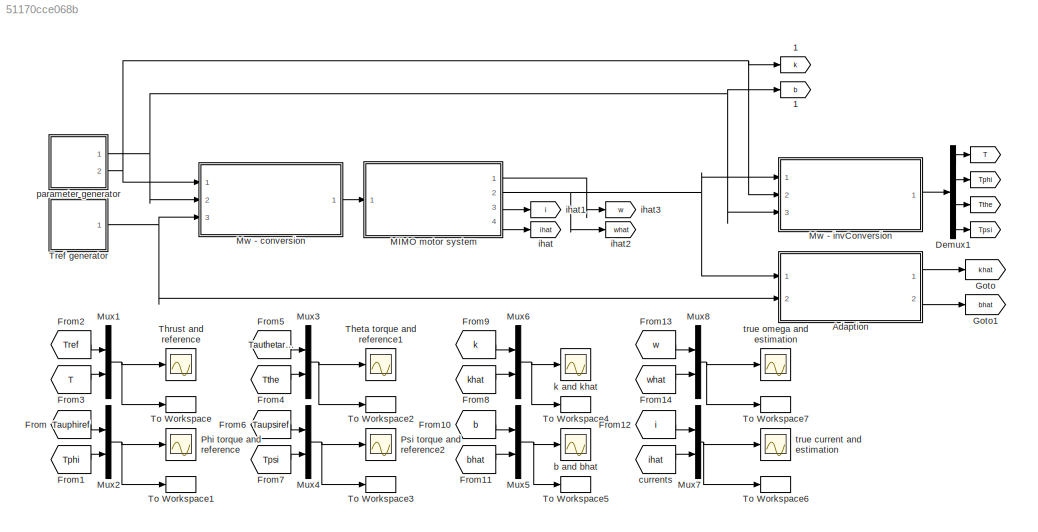
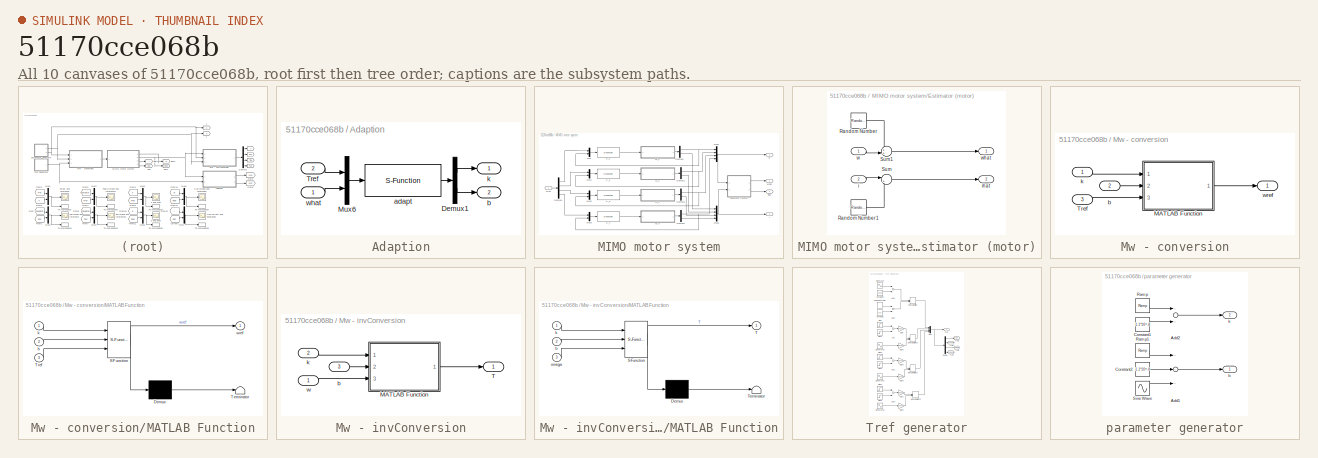
[diagram: thumbnail index - all 10 canvases of the model, root first then tree order]
MODEL slx_51170cce068b
KIND model
CONFIG AbsTol = auto
CONFIG FixedStep = auto
CONFIG MaxStep = auto
CONFIG MinStep = auto
CONFIG RelTol = 1e-3
CONFIG SampleTimeConstraint = Unconstrained
CONFIG Solver = VariableStepAuto
CONFIG SolverMode = Auto
CONFIG SolverName = VariableStepAuto
CONFIG StartTime = 0.0
CONFIG StopTime = 20
BLOCK [Goto]  
  GotoTag = T
BLOCK [Goto]   
  GotoTag = Tphi
BLOCK [Goto]    
  GotoTag = Tthe
BLOCK [Goto]     
  GotoTag = Tpsi
BLOCK [Goto]   1
  GotoTag = b
  TagVisibility = global
BLOCK [Goto]  1
  GotoTag = k
  TagVisibility = global
BLOCK [SubSystem] Adaption
  Ports = [2, 2]
  RequestExecContextInheritance = off
  Variant = off
BLOCK [Demux] Adaption/Demux1
  DisplayOption = bar
  Outputs = 2
  Ports = [1, 2]
BLOCK [Mux] Adaption/Mux6
  DisplayOption = bar
  Inputs = 2
  Ports = [2, 1]
BLOCK [Inport] Adaption/Tref
  IconDisplay = Port number
  Port = 2
BLOCK [S-Function] Adaption/adapt
  EnableBusSupport = off
  FunctionName = adaption_Mw_sfunc
  Ports = [1, 1]
  SFunctionDeploymentMode = off
BLOCK [Outport] Adaption/b
  IconDisplay = Port number
  Port = 2
  PortDimensions = 1
BLOCK [Outport] Adaption/k
  IconDisplay = Port number
  PortDimensions = 1
BLOCK [Inport] Adaption/what
  IconDisplay = Port number
BLOCK [Demux] Demux1
  DisplayOption = bar
  Ports = [1, 4]
BLOCK [From] From
  GotoTag = Tauphiref
  TagVisibility = global
BLOCK [From] From1
  GotoTag = Tphi
BLOCK [From] From10
  GotoTag = b
  TagVisibility = global
BLOCK [From] From11
  GotoTag = bhat
BLOCK [From] From12
  GotoTag = i
BLOCK [From] From13
  GotoTag = w
BLOCK [From] From14
  GotoTag = what
BLOCK [From] From2
  GotoTag = Tref
  TagVisibility = global
BLOCK [From] From3
  GotoTag = T
BLOCK [From] From4
  GotoTag = Tthe
BLOCK [From] From5
  GotoTag = Tauthetaref
  TagVisibility = global
BLOCK [From] From6
  GotoTag = Taupsiref
  TagVisibility = global
BLOCK [From] From7
  GotoTag = Tpsi
BLOCK [From] From8
  GotoTag = khat
BLOCK [From] From9
  GotoTag = k
  TagVisibility = global
BLOCK [Goto] Goto
  GotoTag = khat
BLOCK [Goto] Goto1
  GotoTag = bhat
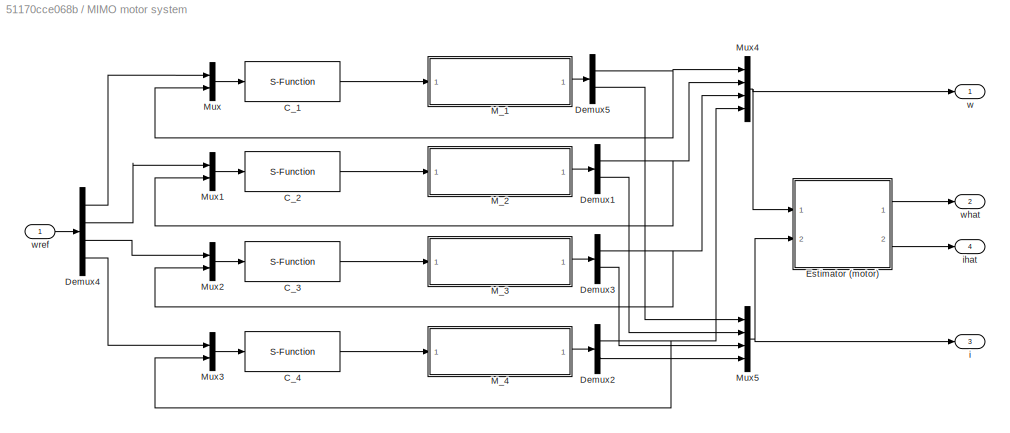
BLOCK [SubSystem] MIMO motor system
  Ports = [1, 4]
  RequestExecContextInheritance = off
  Variant = off
BLOCK [S-Function] MIMO motor system/C_1
  EnableBusSupport = off
  FunctionName = PID_d_sfunc
  Parameters = PIDparam
  Ports = [1, 1]
  SFunctionDeploymentMode = off
BLOCK [S-Function] MIMO motor system/C_2
  EnableBusSupport = off
  FunctionName = PID_d_sfunc
  Parameters = PIDparam
  Ports = [1, 1]
  SFunctionDeploymentMode = off
BLOCK [S-Function] MIMO motor system/C_3
  EnableBusSupport = off
  FunctionName = PID_d_sfunc
  Parameters = PIDparam
  Ports = [1, 1]
  SFunctionDeploymentMode = off
BLOCK [S-Function] MIMO motor system/C_4
  EnableBusSupport = off
  FunctionName = PID_d_sfunc
  Parameters = PIDparam
  Ports = [1, 1]
  SFunctionDeploymentMode = off
BLOCK [Demux] MIMO motor system/Demux1
  DisplayOption = bar
  Outputs = 2
  Ports = [1, 2]
BLOCK [Demux] MIMO motor system/Demux2
  DisplayOption = bar
  Outputs = 2
  Ports = [1, 2]
BLOCK [Demux] MIMO motor system/Demux3
  DisplayOption = bar
  Outputs = 2
  Ports = [1, 2]
BLOCK [Demux] MIMO motor system/Demux4
  DisplayOption = bar
  Ports = [1, 4]
BLOCK [Demux] MIMO motor system/Demux5
  DisplayOption = bar
  Outputs = 2
  Ports = [1, 2]
BLOCK [SubSystem] MIMO motor system/Estimator (motor)
  Ports = [2, 2]
  RequestExecContextInheritance = off
  Variant = off
BLOCK [RandomNumber] MIMO motor system/Estimator (motor)/Random Number
  Mean = [0,0,0,0]
  Variance = 20
BLOCK [RandomNumber] MIMO motor system/Estimator (motor)/Random Number1
  Mean = [0,0,0,0]
  Variance = 0.00001
BLOCK [Sum] MIMO motor system/Estimator (motor)/Sum
  IconShape = round
  InputSameDT = off
  Inputs = |++
  OutDataTypeStr = Inherit: Inherit via internal rule
  Ports = [2, 1]
  SaturateOnIntegerOverflow = off
BLOCK [Sum] MIMO motor system/Estimator (motor)/Sum1
  IconShape = round
  InputSameDT = off
  Inputs = ++|
  OutDataTypeStr = Inherit: Inherit via internal rule
  Ports = [2, 1]
  SaturateOnIntegerOverflow = off
BLOCK [Inport] MIMO motor system/Estimator (motor)/i
  IconDisplay = Port number
  Port = 2
BLOCK [Outport] MIMO motor system/Estimator (motor)/ihat
  IconDisplay = Port number
  Port = 2
BLOCK [Inport] MIMO motor system/Estimator (motor)/w
  IconDisplay = Port number
BLOCK [Outport] MIMO motor system/Estimator (motor)/what
  IconDisplay = Port number
BLOCK [ModelReference] MIMO motor system/M_1
  ModelNameDialog = rotor_model_c.slx
  ModelReferenceVersion = 1.28
  Ports = [1, 1]
  Variant = off
BLOCK [ModelReference] MIMO motor system/M_2
  ModelNameDialog = rotor_model_c.slx
  ModelReferenceVersion = 1.28
  Ports = [1, 1]
  Variant = off
BLOCK [ModelReference] MIMO motor system/M_3
  ModelNameDialog = rotor_model_c.slx
  ModelReferenceVersion = 1.28
  Ports = [1, 1]
  Variant = off
BLOCK [ModelReference] MIMO motor system/M_4
  ModelNameDialog = rotor_model_c.slx
  ModelReferenceVersion = 1.28
  Ports = [1, 1]
  Variant = off
BLOCK [Mux] MIMO motor system/Mux
  DisplayOption = bar
  Inputs = 2
  Ports = [2, 1]
BLOCK [Mux] MIMO motor system/Mux1
  DisplayOption = bar
  Inputs = 2
  Ports = [2, 1]
BLOCK [Mux] MIMO motor system/Mux2
  DisplayOption = bar
  Inputs = 2
  Ports = [2, 1]
BLOCK [Mux] MIMO motor system/Mux3
  DisplayOption = bar
  Inputs = 2
  Ports = [2, 1]
BLOCK [Mux] MIMO motor system/Mux4
  DisplayOption = bar
  Ports = [4, 1]
BLOCK [Mux] MIMO motor system/Mux5
  DisplayOption = bar
  Ports = [4, 1]
BLOCK [Outport] MIMO motor system/i
  IconDisplay = Port number
  Port = 3
BLOCK [Outport] MIMO motor system/ihat
  IconDisplay = Port number
  Port = 4
BLOCK [Outport] MIMO motor system/w
  IconDisplay = Port number
BLOCK [Outport] MIMO motor system/what
  IconDisplay = Port number
  Port = 2
BLOCK [Inport] MIMO motor system/wref
  IconDisplay = Port number
BLOCK [Mux] Mux1
  DisplayOption = bar
  Inputs = 2
  Ports = [2, 1]
BLOCK [Mux] Mux2
  DisplayOption = bar
  Inputs = 2
  Ports = [2, 1]
BLOCK [Mux] Mux3
  DisplayOption = bar
  Inputs = 2
  Ports = [2, 1]
BLOCK [Mux] Mux4
  DisplayOption = bar
  Inputs = 2
  Ports = [2, 1]
BLOCK [Mux] Mux5
  DisplayOption = bar
  Inputs = 2
  Ports = [2, 1]
BLOCK [Mux] Mux6
  DisplayOption = bar
  Inputs = 2
  Ports = [2, 1]
BLOCK [Mux] Mux7
  DisplayOption = bar
  Inputs = 2
  Ports = [2, 1]
BLOCK [Mux] Mux8
  DisplayOption = bar
  Inputs = 2
  Ports = [2, 1]
BLOCK [SubSystem] Mw - conversion
  Ports = [3, 1]
  RequestExecContextInheritance = off
  Variant = off
BLOCK [SubSystem] Mw - conversion/MATLAB Function
  ErrorFcn = Stateflow.Translate.translate
  PermitHierarchicalResolution = ExplicitOnly
  Ports = [3, 1]
  RequestExecContextInheritance = off
  SFBlockType = MATLAB Function
  TreatAsAtomicUnit = on
  Variant = off
BLOCK [Demux] Mw - conversion/MATLAB Function/ Demux 
  Outputs = 1
  Ports = [1, 1]
BLOCK [S-Function] Mw - conversion/MATLAB Function/ SFunction 
  EnableBusSupport = on
  FunctionName = sf_sfun
  PortCounts = [3 2]
  Ports = [3, 2]
  SFunctionDeploymentMode = off
  Tag = Stateflow S-Function example_rotor_loop 2
BLOCK [Terminator] Mw - conversion/MATLAB Function/ Terminator 
BLOCK [Inport] Mw - conversion/MATLAB Function/Tref
  IconDisplay = Port number
  Port = 3
BLOCK [Inport] Mw - conversion/MATLAB Function/b
  IconDisplay = Port number
  Port = 2
BLOCK [Inport] Mw - conversion/MATLAB Function/k
  IconDisplay = Port number
BLOCK [Outport] Mw - conversion/MATLAB Function/wref
  IconDisplay = Port number
BLOCK [Inport] Mw - conversion/Tref
  IconDisplay = Port number
  Port = 3
BLOCK [Inport] Mw - conversion/b
  IconDisplay = Port number
  Port = 2
BLOCK [Inport] Mw - conversion/k
  IconDisplay = Port number
BLOCK [Outport] Mw - conversion/wref
  IconDisplay = Port number
BLOCK [SubSystem] Mw - invConversion
  Ports = [3, 1]
  RequestExecContextInheritance = off
  Variant = off
BLOCK [SubSystem] Mw - invConversion/MATLAB Function
  ErrorFcn = Stateflow.Translate.translate
  PermitHierarchicalResolution = ExplicitOnly
  Ports = [3, 1]
  RequestExecContextInheritance = off
  SFBlockType = MATLAB Function
  TreatAsAtomicUnit = on
  Variant = off
BLOCK [Demux] Mw - invConversion/MATLAB Function/ Demux 
  Outputs = 1
  Ports = [1, 1]
BLOCK [S-Function] Mw - invConversion/MATLAB Function/ SFunction 
  EnableBusSupport = on
  FunctionName = sf_sfun
  PortCounts = [3 2]
  Ports = [3, 2]
  SFunctionDeploymentMode = off
  Tag = Stateflow S-Function example_rotor_loop 1
BLOCK [Terminator] Mw - invConversion/MATLAB Function/ Terminator 
BLOCK [Outport] Mw - invConversion/MATLAB Function/T
  IconDisplay = Port number
BLOCK [Inport] Mw - invConversion/MATLAB Function/b
  IconDisplay = Port number
  Port = 2
BLOCK [Inport] Mw - invConversion/MATLAB Function/k
  IconDisplay = Port number
BLOCK [Inport] Mw - invConversion/MATLAB Function/omega
  IconDisplay = Port number
  Port = 3
BLOCK [Outport] Mw - invConversion/T
  IconDisplay = Port number
BLOCK [Inport] Mw - invConversion/b
  IconDisplay = Port number
  Port = 3
BLOCK [Inport] Mw - invConversion/k
  IconDisplay = Port number
  Port = 2
BLOCK [Inport] Mw - invConversion/w
  IconDisplay = Port number
BLOCK [Scope] Phi torque and reference
  Ports = [1]
  ScopeSpecificationString = Simulink.scopes.TimeScopeBlockCfg('CurrentConfiguration', extmgr.ConfigurationSet(extmgr.Configuration('Core','General UI',true),extmgr.Configuration('Core','Source UI',true),extmgr.Configuration('Sources','WiredSimulink',true),extmgr.Configuration('Visuals','Time Domain',true,'SerializedDisplays',{struct('MinYLimReal','-0.00065','MaxYLimReal','0.00066','YLabelReal','','MinYLimMag','0.00000','MaxY...<+1367ch>
BLOCK [Scope] Psi torque and reference2
  Ports = [1]
  ScopeSpecificationString = Simulink.scopes.TimeScopeBlockCfg('CurrentConfiguration', extmgr.ConfigurationSet(extmgr.Configuration('Core','General UI',true),extmgr.Configuration('Core','Source UI',true),extmgr.Configuration('Sources','WiredSimulink',true,'DataLoggingVariableName','ScopeData3'),extmgr.Configuration('Visuals','Time Domain',true,'SerializedDisplays',{struct('MinYLimReal','-0.00032','MaxYLimReal','0.00041','YLab...<+1377ch>
BLOCK [Scope] Theta torque and reference1
  Ports = [1]
  ScopeSpecificationString = Simulink.scopes.TimeScopeBlockCfg('CurrentConfiguration', extmgr.ConfigurationSet(extmgr.Configuration('Core','General UI',true),extmgr.Configuration('Core','Source UI',true),extmgr.Configuration('Sources','WiredSimulink',true,'DataLoggingVariableName','ScopeData2'),extmgr.Configuration('Visuals','Time Domain',true,'SerializedDisplays',{struct('MinYLimReal','-0.00032','MaxYLimReal','0.00033','YLab...<+1377ch>
BLOCK [Scope] Thrust and reference
  Ports = [1]
  ScopeSpecificationString = Simulink.scopes.TimeScopeBlockCfg('CurrentConfiguration', extmgr.ConfigurationSet(extmgr.Configuration('Core','General UI',true),extmgr.Configuration('Core','Source UI',true),extmgr.Configuration('Sources','WiredSimulink',true,'DataLoggingVariableName','ScopeData1'),extmgr.Configuration('Visuals','Time Domain',true,'SerializedDisplays',{struct('MinYLimReal','-0.00649','MaxYLimReal','0.05838','YLab...<+1406ch>
BLOCK [ToWorkspace] To Workspace
  FixptAsFi = on
  MaxDataPoints = inf
  Ports = [1]
  SampleTime = -1
  Save2DSignal = 3-D array (concatenate along third dimension)
  SaveFormat = Timeseries
  VariableName = T
BLOCK [ToWorkspace] To Workspace1
  FixptAsFi = on
  MaxDataPoints = inf
  Ports = [1]
  SampleTime = -1
  Save2DSignal = 3-D array (concatenate along third dimension)
  SaveFormat = Timeseries
  VariableName = tphi
BLOCK [ToWorkspace] To Workspace2
  FixptAsFi = on
  MaxDataPoints = inf
  Ports = [1]
  SampleTime = -1
  Save2DSignal = 3-D array (concatenate along third dimension)
  SaveFormat = Timeseries
  VariableName = ttheta
BLOCK [ToWorkspace] To Workspace3
  FixptAsFi = on
  MaxDataPoints = inf
  Ports = [1]
  SampleTime = -1
  Save2DSignal = 3-D array (concatenate along third dimension)
  SaveFormat = Timeseries
  VariableName = tpsi
BLOCK [ToWorkspace] To Workspace4
  FixptAsFi = on
  MaxDataPoints = inf
  Ports = [1]
  SampleTime = -1
  Save2DSignal = 3-D array (concatenate along third dimension)
  SaveFormat = Timeseries
  VariableName = khat
BLOCK [ToWorkspace] To Workspace5
  FixptAsFi = on
  MaxDataPoints = inf
  Ports = [1]
  SampleTime = -1
  Save2DSignal = 3-D array (concatenate along third dimension)
  SaveFormat = Timeseries
  VariableName = bhat
BLOCK [ToWorkspace] To Workspace6
  FixptAsFi = on
  MaxDataPoints = inf
  Ports = [1]
  SampleTime = -1
  Save2DSignal = 3-D array (concatenate along third dimension)
  SaveFormat = Timeseries
  VariableName = current
BLOCK [ToWorkspace] To Workspace7
  FixptAsFi = on
  MaxDataPoints = inf
  Ports = [1]
  SampleTime = -1
  Save2DSignal = 3-D array (concatenate along third dimension)
  SaveFormat = Timeseries
  VariableName = omega
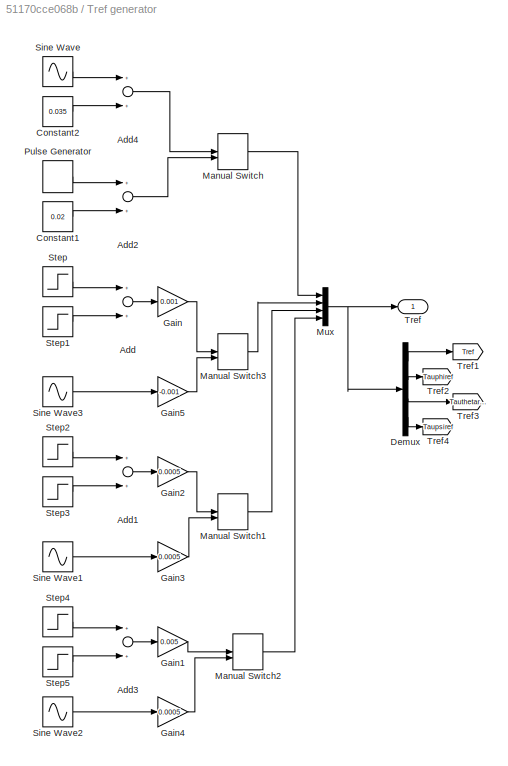
BLOCK [SubSystem] Tref generator
  Ports = [0, 1]
  RequestExecContextInheritance = off
  Variant = off
BLOCK [Sum] Tref generator/Add
  InputSameDT = off
  OutDataTypeStr = Inherit: Inherit via internal rule
  Ports = [2, 1]
  SaturateOnIntegerOverflow = off
BLOCK [Sum] Tref generator/Add1
  InputSameDT = off
  OutDataTypeStr = Inherit: Inherit via internal rule
  Ports = [2, 1]
  SaturateOnIntegerOverflow = off
BLOCK [Sum] Tref generator/Add2
  InputSameDT = off
  OutDataTypeStr = Inherit: Inherit via internal rule
  Ports = [2, 1]
  SaturateOnIntegerOverflow = off
BLOCK [Sum] Tref generator/Add3
  InputSameDT = off
  OutDataTypeStr = Inherit: Inherit via internal rule
  Ports = [2, 1]
  SaturateOnIntegerOverflow = off
BLOCK [Sum] Tref generator/Add4
  InputSameDT = off
  OutDataTypeStr = Inherit: Inherit via internal rule
  Ports = [2, 1]
  SaturateOnIntegerOverflow = off
BLOCK [Constant] Tref generator/Constant1
  Value = 0.02
BLOCK [Constant] Tref generator/Constant2
  Value = 0.035
BLOCK [Demux] Tref generator/Demux
  DisplayOption = bar
  Ports = [1, 4]
BLOCK [Gain] Tref generator/Gain
  Gain = 0.001
  OutDataTypeStr = Inherit: Inherit via internal rule
  ParamDataTypeStr = Inherit: Inherit via internal rule
  SaturateOnIntegerOverflow = off
BLOCK [Gain] Tref generator/Gain1
  Gain = 0.005
  OutDataTypeStr = Inherit: Inherit via internal rule
  ParamDataTypeStr = Inherit: Inherit via internal rule
  SaturateOnIntegerOverflow = off
BLOCK [Gain] Tref generator/Gain2
  Gain = 0.0005
  OutDataTypeStr = Inherit: Inherit via internal rule
  ParamDataTypeStr = Inherit: Inherit via internal rule
  SaturateOnIntegerOverflow = off
BLOCK [Gain] Tref generator/Gain3
  Gain = 0.0005
  OutDataTypeStr = Inherit: Inherit via internal rule
  ParamDataTypeStr = Inherit: Inherit via internal rule
  SaturateOnIntegerOverflow = off
BLOCK [Gain] Tref generator/Gain4
  Gain = 0.0005
  OutDataTypeStr = Inherit: Inherit via internal rule
  ParamDataTypeStr = Inherit: Inherit via internal rule
  SaturateOnIntegerOverflow = off
BLOCK [Gain] Tref generator/Gain5
  Gain = -0.001
  OutDataTypeStr = Inherit: Inherit via internal rule
  ParamDataTypeStr = Inherit: Inherit via internal rule
  SaturateOnIntegerOverflow = off
BLOCK [ManualSwitch] Tref generator/Manual Switch
  CurrentSetting = 0
BLOCK [ManualSwitch] Tref generator/Manual Switch1
  CurrentSetting = 0
BLOCK [ManualSwitch] Tref generator/Manual Switch2
  CurrentSetting = 0
BLOCK [ManualSwitch] Tref generator/Manual Switch3
  CurrentSetting = 0
BLOCK [Mux] Tref generator/Mux
  DisplayOption = bar
  Ports = [4, 1]
BLOCK [DiscretePulseGenerator] Tref generator/Pulse Generator
  Amplitude = 0.03
  Period = 4
  Ports = [0, 1]
  PulseType = Time based
  PulseWidth = 50
BLOCK [Sin] Tref generator/Sine Wave
  Amplitude = 0.015
  Ports = [0, 1]
  SampleTime = 0
BLOCK [Sin] Tref generator/Sine Wave1
  Amplitude = 0.5
  Ports = [0, 1]
  SampleTime = 0
BLOCK [Sin] Tref generator/Sine Wave2
  Amplitude = 0.5
  Frequency = 0.5
  Ports = [0, 1]
  SampleTime = 0
BLOCK [Sin] Tref generator/Sine Wave3
  Amplitude = 0.5
  Frequency = 2
  Ports = [0, 1]
  SampleTime = 0
BLOCK [Step] Tref generator/Step
  After = -1
  SampleTime = 0
BLOCK [Step] Tref generator/Step1
  SampleTime = 0
  Time = 2
BLOCK [Step] Tref generator/Step2
  SampleTime = 0
  Time = 4
BLOCK [Step] Tref generator/Step3
  After = -1
  SampleTime = 0
  Time = 8
BLOCK [Step] Tref generator/Step4
  SampleTime = 0
  Time = 10
BLOCK [Step] Tref generator/Step5
  After = -1
  SampleTime = 0
  Time = 12
BLOCK [Outport] Tref generator/Tref
  IconDisplay = Port number
BLOCK [Goto] Tref generator/Tref1
  GotoTag = Tref
  TagVisibility = global
BLOCK [Goto] Tref generator/Tref2
  GotoTag = Tauphiref
  TagVisibility = global
BLOCK [Goto] Tref generator/Tref3
  GotoTag = Tauthetaref
  TagVisibility = global
BLOCK [Goto] Tref generator/Tref4
  GotoTag = Taupsiref
  TagVisibility = global
BLOCK [Scope] b and bhat
  Ports = [1]
  ScopeSpecificationString = Simulink.scopes.TimeScopeBlockCfg('CurrentConfiguration', extmgr.ConfigurationSet(extmgr.Configuration('Core','General UI',true),extmgr.Configuration('Core','Source UI',true),extmgr.Configuration('Sources','WiredSimulink',true,'DataLoggingVariableName','ScopeData1'),extmgr.Configuration('Visuals','Time Domain',true,'SerializedDisplays',{struct('MinYLimReal','0.0000000099','MaxYLimReal','0.00000001...<+1431ch>
BLOCK [From] currents
  GotoTag = ihat
BLOCK [Goto] ihat
  GotoTag = ihat
BLOCK [Goto] ihat1
  GotoTag = i
BLOCK [Goto] ihat2
  GotoTag = what
BLOCK [Goto] ihat3
  GotoTag = w
BLOCK [Scope] k and khat
  Ports = [1]
  ScopeSpecificationString = Simulink.scopes.TimeScopeBlockCfg('CurrentConfiguration', extmgr.ConfigurationSet(extmgr.Configuration('Core','General UI',true),extmgr.Configuration('Core','Source UI',true),extmgr.Configuration('Sources','WiredSimulink',true,'DataLoggingVariableName','ScopeData2'),extmgr.Configuration('Visuals','Time Domain',true,'SerializedDisplays',{struct('MinYLimReal','0.0000000087','MaxYLimReal','0.00000001...<+1502ch>
BLOCK [SubSystem] parameter generator
  Ports = [0, 2]
  RequestExecContextInheritance = off
  Variant = off
BLOCK [Sum] parameter generator/Add1
  InputSameDT = off
  Inputs = +++
  OutDataTypeStr = Inherit: Inherit via internal rule
  Ports = [3, 1]
  SaturateOnIntegerOverflow = off
BLOCK [Sum] parameter generator/Add2
  InputSameDT = off
  OutDataTypeStr = Inherit: Inherit via internal rule
  Ports = [2, 1]
  SaturateOnIntegerOverflow = off
BLOCK [Constant] parameter generator/Constant1
  Value = 1.1*10^-8
BLOCK [Constant] parameter generator/Constant2
  Value = 1.1*10^-8
BLOCK [Reference] parameter generator/Ramp  REF=simulink/Sources/Ramp
  Ports = [0, 1]
  SourceBlock = simulink/Sources/Ramp
  SourceType = Ramp
BLOCK [Reference] parameter generator/Ramp1  REF=simulink/Sources/Ramp
  Ports = [0, 1]
  SourceBlock = simulink/Sources/Ramp
  SourceType = Ramp
BLOCK [Sin] parameter generator/Sine Wave
  Amplitude = 10^-10/2
  Ports = [0, 1]
  SampleTime = 0
BLOCK [Outport] parameter generator/b 
  IconDisplay = Port number
  PortDimensions = 1
BLOCK [Outport] parameter generator/k
  IconDisplay = Port number
  Port = 2
  PortDimensions = 1
BLOCK [Scope] true current and estimation
  Ports = [1]
  ScopeSpecificationString = Simulink.scopes.TimeScopeBlockCfg('CurrentConfiguration', extmgr.ConfigurationSet(extmgr.Configuration('Core','General UI',true),extmgr.Configuration('Core','Source UI',true),extmgr.Configuration('Sources','WiredSimulink',true,'DataLoggingVariableName','ScopeData3'),extmgr.Configuration('Visuals','Time Domain',true,'SerializedDisplays',{struct('MinYLimReal','-0.13077','MaxYLimReal','0.55775','YLab...<+1548ch>
BLOCK [Scope] true omega and estimation
  Ports = [1]
  ScopeSpecificationString = Simulink.scopes.TimeScopeBlockCfg('CurrentConfiguration', extmgr.ConfigurationSet(extmgr.Configuration('Core','General UI',true),extmgr.Configuration('Core','Source UI',true),extmgr.Configuration('Sources','WiredSimulink',true,'DataLoggingVariableName','ScopeData2'),extmgr.Configuration('Visuals','Time Domain',true,'SerializedDisplays',{struct('MinYLimReal','-160.42044','MaxYLimReal','1379.08972',...<+1566ch>
LINE Adaption/Demux1:1 -> Adaption/k:1
LINE Adaption/Demux1:2 -> Adaption/b:1
LINE Adaption/Mux6:1 -> Adaption/adapt:1
LINE Adaption/Tref:1 -> Adaption/Mux6:1
LINE Adaption/adapt:1 -> Adaption/Demux1:1
LINE Adaption/what:1 -> Adaption/Mux6:2
LINE Adaption:1 -> Goto:1
LINE Adaption:2 -> Goto1:1
LINE Demux1:1 ->  :1
LINE Demux1:2 ->   :1
LINE Demux1:3 ->    :1
LINE Demux1:4 ->     :1
LINE From10:1 -> Mux5:1
LINE From11:1 -> Mux5:2
LINE From12:1 -> Mux7:1
LINE From13:1 -> Mux8:1
LINE From14:1 -> Mux8:2
LINE From1:1 -> Mux2:2
LINE From2:1 -> Mux1:1
LINE From3:1 -> Mux1:2
LINE From4:1 -> Mux3:2
LINE From5:1 -> Mux3:1
LINE From6:1 -> Mux4:1
LINE From7:1 -> Mux4:2
LINE From8:1 -> Mux6:2
LINE From9:1 -> Mux6:1
LINE From:1 -> Mux2:1
LINE MIMO motor system/C_1:1 -> MIMO motor system/M_1:1
LINE MIMO motor system/C_2:1 -> MIMO motor system/M_2:1
LINE MIMO motor system/C_3:1 -> MIMO motor system/M_3:1
LINE MIMO motor system/C_4:1 -> MIMO motor system/M_4:1
NET MIMO motor system/Demux1:1 -> MIMO motor system/Mux1:2, MIMO motor system/Mux4:2
LINE MIMO motor system/Demux1:2 -> MIMO motor system/Mux5:2
NET MIMO motor system/Demux2:1 -> MIMO motor system/Mux3:2, MIMO motor system/Mux4:4
LINE MIMO motor system/Demux2:2 -> MIMO motor system/Mux5:4
NET MIMO motor system/Demux3:1 -> MIMO motor system/Mux2:2, MIMO motor system/Mux4:3
LINE MIMO motor system/Demux3:2 -> MIMO motor system/Mux5:3
LINE MIMO motor system/Demux4:1 -> MIMO motor system/Mux:1
LINE MIMO motor system/Demux4:2 -> MIMO motor system/Mux1:1
LINE MIMO motor system/Demux4:3 -> MIMO motor system/Mux2:1
LINE MIMO motor system/Demux4:4 -> MIMO motor system/Mux3:1
NET MIMO motor system/Demux5:1 -> MIMO motor system/Mux4:1, MIMO motor system/Mux:2
LINE MIMO motor system/Demux5:2 -> MIMO motor system/Mux5:1
LINE MIMO motor system/Estimator (motor)/Random Number1:1 -> MIMO motor system/Estimator (motor)/Sum:2
LINE MIMO motor system/Estimator (motor)/Random Number:1 -> MIMO motor system/Estimator (motor)/Sum1:1
LINE MIMO motor system/Estimator (motor)/Sum1:1 -> MIMO motor system/Estimator (motor)/what:1
LINE MIMO motor system/Estimator (motor)/Sum:1 -> MIMO motor system/Estimator (motor)/ihat:1
LINE MIMO motor system/Estimator (motor)/i:1 -> MIMO motor system/Estimator (motor)/Sum:1
LINE MIMO motor system/Estimator (motor)/w:1 -> MIMO motor system/Estimator (motor)/Sum1:2
LINE MIMO motor system/Estimator (motor):1 -> MIMO motor system/what:1
LINE MIMO motor system/Estimator (motor):2 -> MIMO motor system/ihat:1
LINE MIMO motor system/M_1:1 -> MIMO motor system/Demux5:1
LINE MIMO motor system/M_2:1 -> MIMO motor system/Demux1:1
LINE MIMO motor system/M_3:1 -> MIMO motor system/Demux3:1
LINE MIMO motor system/M_4:1 -> MIMO motor system/Demux2:1
LINE MIMO motor system/Mux1:1 -> MIMO motor system/C_2:1
LINE MIMO motor system/Mux2:1 -> MIMO motor system/C_3:1
LINE MIMO motor system/Mux3:1 -> MIMO motor system/C_4:1
NET MIMO motor system/Mux4:1 -> MIMO motor system/Estimator (motor):1, MIMO motor system/w:1
NET MIMO motor system/Mux5:1 -> MIMO motor system/Estimator (motor):2, MIMO motor system/i:1
LINE MIMO motor system/Mux:1 -> MIMO motor system/C_1:1
LINE MIMO motor system/wref:1 -> MIMO motor system/Demux4:1
LINE MIMO motor system:1 -> ihat3:1
NET MIMO motor system:2 -> Adaption:1, Mw - invConversion:1, ihat2:1
LINE MIMO motor system:3 -> ihat1:1
LINE MIMO motor system:4 -> ihat:1
NET Mux1:1 -> Thrust and reference:1, To Workspace:1
NET Mux2:1 -> Phi torque and reference:1, To Workspace1:1
NET Mux3:1 -> Theta torque and reference1:1, To Workspace2:1
NET Mux4:1 -> Psi torque and reference2:1, To Workspace3:1
NET Mux5:1 -> To Workspace5:1, b and bhat:1
NET Mux6:1 -> To Workspace4:1, k and khat:1
NET Mux7:1 -> To Workspace6:1, true current and estimation:1
NET Mux8:1 -> To Workspace7:1, true omega and estimation:1
LINE Mw - conversion/MATLAB Function:1 -> Mw - conversion/wref:1
LINE Mw - conversion/Tref:1 -> Mw - conversion/MATLAB Function:3
LINE Mw - conversion/b:1 -> Mw - conversion/MATLAB Function:2
LINE Mw - conversion/k:1 -> Mw - conversion/MATLAB Function:1
LINE Mw - conversion:1 -> MIMO motor system:1
LINE Mw - invConversion/MATLAB Function:1 -> Mw - invConversion/T:1
LINE Mw - invConversion/b:1 -> Mw - invConversion/MATLAB Function:2
LINE Mw - invConversion/k:1 -> Mw - invConversion/MATLAB Function:1
LINE Mw - invConversion/w:1 -> Mw - invConversion/MATLAB Function:3
LINE Mw - invConversion:1 -> Demux1:1
LINE Tref generator/Add1:1 -> Tref generator/Gain2:1
LINE Tref generator/Add2:1 -> Tref generator/Manual Switch:2
LINE Tref generator/Add3:1 -> Tref generator/Gain1:1
LINE Tref generator/Add4:1 -> Tref generator/Manual Switch:1
LINE Tref generator/Add:1 -> Tref generator/Gain:1
LINE Tref generator/Constant1:1 -> Tref generator/Add2:2
LINE Tref generator/Constant2:1 -> Tref generator/Add4:2
LINE Tref generator/Demux:1 -> Tref generator/Tref1:1
LINE Tref generator/Demux:2 -> Tref generator/Tref2:1
LINE Tref generator/Demux:3 -> Tref generator/Tref3:1
LINE Tref generator/Demux:4 -> Tref generator/Tref4:1
LINE Tref generator/Gain1:1 -> Tref generator/Manual Switch2:1
LINE Tref generator/Gain2:1 -> Tref generator/Manual Switch1:1
LINE Tref generator/Gain3:1 -> Tref generator/Manual Switch1:2
LINE Tref generator/Gain4:1 -> Tref generator/Manual Switch2:2
LINE Tref generator/Gain5:1 -> Tref generator/Manual Switch3:2
LINE Tref generator/Gain:1 -> Tref generator/Manual Switch3:1
LINE Tref generator/Manual Switch1:1 -> Tref generator/Mux:3
LINE Tref generator/Manual Switch2:1 -> Tref generator/Mux:4
LINE Tref generator/Manual Switch3:1 -> Tref generator/Mux:2
LINE Tref generator/Manual Switch:1 -> Tref generator/Mux:1
NET Tref generator/Mux:1 -> Tref generator/Demux:1, Tref generator/Tref:1
LINE Tref generator/Pulse Generator:1 -> Tref generator/Add2:1
LINE Tref generator/Sine Wave1:1 -> Tref generator/Gain3:1
LINE Tref generator/Sine Wave2:1 -> Tref generator/Gain4:1
LINE Tref generator/Sine Wave3:1 -> Tref generator/Gain5:1
LINE Tref generator/Sine Wave:1 -> Tref generator/Add4:1
LINE Tref generator/Step1:1 -> Tref generator/Add:2
LINE Tref generator/Step2:1 -> Tref generator/Add1:1
LINE Tref generator/Step3:1 -> Tref generator/Add1:2
LINE Tref generator/Step4:1 -> Tref generator/Add3:1
LINE Tref generator/Step5:1 -> Tref generator/Add3:2
LINE Tref generator/Step:1 -> Tref generator/Add:1
NET Tref generator:1 -> Adaption:2, Mw - conversion:3
LINE currents:1 -> Mux7:2
LINE parameter generator/Add1:1 -> parameter generator/b :1
LINE parameter generator/Add2:1 -> parameter generator/k:1
LINE parameter generator/Constant1:1 -> parameter generator/Add2:2
LINE parameter generator/Constant2:1 -> parameter generator/Add1:2
LINE parameter generator/Ramp1:1 -> parameter generator/Add1:1
LINE parameter generator/Ramp:1 -> parameter generator/Add2:1
LINE parameter generator/Sine Wave:1 -> parameter generator/Add1:3
NET parameter generator:1 ->   1:1, Mw - conversion:2, Mw - invConversion:3
NET parameter generator:2 ->  1:1, Mw - conversion:1, Mw - invConversion:2
note: NET lines group one-source signal fan-out (src -> all destinations, sorted); 1:1 wires keep LINE
CHART Mw - invConversion/MATLAB Function states=1 transitions=1
  STATE_LABEL 'eML_blk_kernel()'
  STATE_LABEL 'SCRIPT:\nfunction T = fcn(k, b, omega)\n%#codegen\nl = 0.1;\nomegasq = omega.^2;\nMw = [k   , k   , k  , k  ;\n      0   , -k*l, 0  , k*l;\n      -k*l, 0   , k*l, 0  ;\n      b  , -b   , b , -b  ];\nT = Mw*omegasq;'
CHART Mw - conversion/MATLAB Function states=1 transitions=1
  STATE_LABEL 'eML_blk_kernel()'
  STATE_LABEL 'SCRIPT:\nfunction wref = fcn(k, b, Tref)\n%#codegen\nl = 0.1;\nMw = [1/(4*k), 0         , -1/(2*l*k), 1/(4*b) ;\n      1/(4*k), -1/(2*l*k), 0         , -1/(4*b);\n      1/(4*k), 0         , 1/(2*l*k) , 1/(4*b) ;\n      1/(4*k), 1/(2*l*k) , 0         , -1/(4*b)];\nomegasq = Mw * Tref;\nwref = sqrt(abs(omegasq));'
